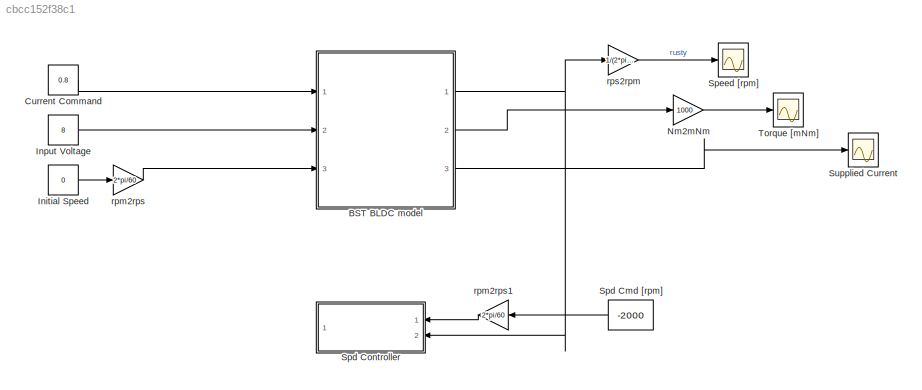
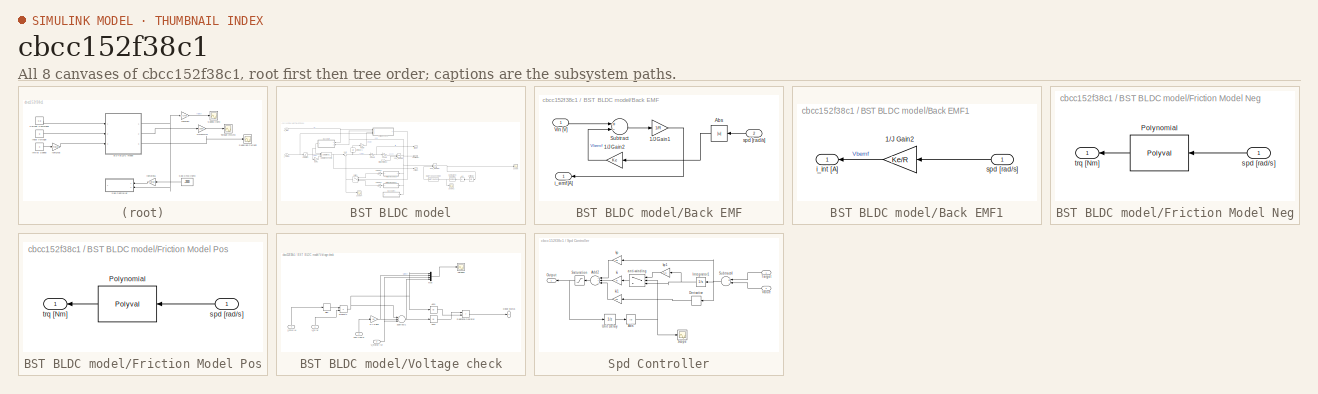
[diagram: thumbnail index - all 8 canvases of the model, root first then tree order]
MODEL slx_cbcc152f38c1
KIND model
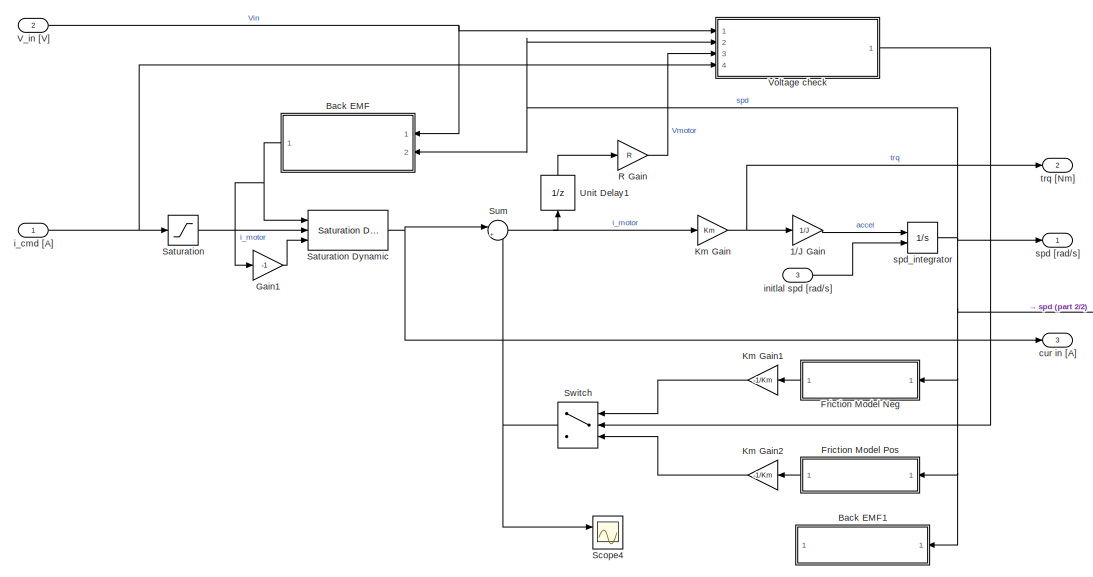
[diagram: BST BLDC model - part 1/2, left side, full height]
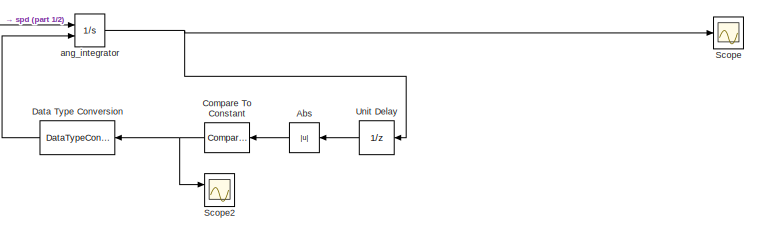
[diagram: BST BLDC model - part 2/2, bottom right region]
BLOCK [SubSystem] BST BLDC model
  Ports = [3, 3]
  RequestExecContextInheritance = off
BLOCK [Gain] BST BLDC model/1//J Gain
  Gain = 1/J
  OutDataTypeStr = Inherit: Inherit via internal rule
  ParamDataTypeStr = Inherit: Inherit via internal rule
  SaturateOnIntegerOverflow = off
BLOCK [Abs] BST BLDC model/Abs
  SaturateOnIntegerOverflow = off
BLOCK [SubSystem] BST BLDC model/Back EMF
  Ports = [2, 1]
  RequestExecContextInheritance = off
BLOCK [Gain] BST BLDC model/Back EMF/1//J Gain1
  Gain = 1/R
  OutDataTypeStr = Inherit: Inherit via internal rule
  ParamDataTypeStr = Inherit: Inherit via internal rule
  SaturateOnIntegerOverflow = off
BLOCK [Gain] BST BLDC model/Back EMF/1//J Gain2
  Gain = Ke
  OutDataTypeStr = Inherit: Inherit via internal rule
  ParamDataTypeStr = Inherit: Inherit via internal rule
  SaturateOnIntegerOverflow = off
BLOCK [Abs] BST BLDC model/Back EMF/Abs
  SaturateOnIntegerOverflow = off
BLOCK [Sum] BST BLDC model/Back EMF/Subtract
  InputSameDT = off
  Inputs = +-
  OutDataTypeStr = Inherit: Inherit via internal rule
  Ports = [2, 1]
  SaturateOnIntegerOverflow = off
BLOCK [Inport] BST BLDC model/Back EMF/Vin [V]
  IconDisplay = Port number
BLOCK [Outport] BST BLDC model/Back EMF/i_emf [A]
  IconDisplay = Port number
BLOCK [Inport] BST BLDC model/Back EMF/spd [rad//s]
  IconDisplay = Port number
  Port = 2
BLOCK [SubSystem] BST BLDC model/Back EMF1
  Ports = [1, 1]
  RequestExecContextInheritance = off
BLOCK [Gain] BST BLDC model/Back EMF1/1//J Gain2
  Gain = Ke/R
  OutDataTypeStr = Inherit: Inherit via internal rule
  ParamDataTypeStr = Inherit: Inherit via internal rule
  SaturateOnIntegerOverflow = off
BLOCK [Outport] BST BLDC model/Back EMF1/i_int [A]
  IconDisplay = Port number
BLOCK [Inport] BST BLDC model/Back EMF1/spd [rad//s]
  IconDisplay = Port number
BLOCK [Reference] BST BLDC model/Compare To Constant  REF=simulink/Logic and Bit
Operations/Compare
To Constant
  OutDataTypeStr = uint8
  Ports = [1, 1]
  SourceBlock = simulink/Logic and Bit\nOperations/Compare\nTo Constant
  SourceType = Compare To Constant
  ZeroCross = on
  const = 2*pi
  relop = >
BLOCK [DataTypeConversion] BST BLDC model/Data Type Conversion
  RndMeth = Floor
  SaturateOnIntegerOverflow = off
BLOCK [SubSystem] BST BLDC model/Friction Model Neg
  Ports = [1, 1]
  RequestExecContextInheritance = off
BLOCK [Polyval] BST BLDC model/Friction Model Neg/Polynomial
  Coefs = frctn
BLOCK [Inport] BST BLDC model/Friction Model Neg/spd [rad//s]
  IconDisplay = Port number
BLOCK [Outport] BST BLDC model/Friction Model Neg/trq [Nm]
  IconDisplay = Port number
BLOCK [SubSystem] BST BLDC model/Friction Model Pos
  Ports = [1, 1]
  RequestExecContextInheritance = off
BLOCK [Polyval] BST BLDC model/Friction Model Pos/Polynomial
  Coefs = frctn
BLOCK [Inport] BST BLDC model/Friction Model Pos/spd [rad//s]
  IconDisplay = Port number
BLOCK [Outport] BST BLDC model/Friction Model Pos/trq [Nm]
  IconDisplay = Port number
BLOCK [Gain] BST BLDC model/Gain1
  Gain = -1
  OutDataTypeStr = Inherit: Inherit via internal rule
  ParamDataTypeStr = Inherit: Inherit via internal rule
  SaturateOnIntegerOverflow = off
BLOCK [Gain] BST BLDC model/Km Gain
  Gain = Km
  OutDataTypeStr = Inherit: Inherit via internal rule
  ParamDataTypeStr = Inherit: Inherit via internal rule
  SaturateOnIntegerOverflow = off
BLOCK [Gain] BST BLDC model/Km Gain1
  Gain = -1/Km
  OutDataTypeStr = Inherit: Inherit via internal rule
  ParamDataTypeStr = Inherit: Inherit via internal rule
  SaturateOnIntegerOverflow = off
BLOCK [Gain] BST BLDC model/Km Gain2
  Gain = -1/Km
  OutDataTypeStr = Inherit: Inherit via internal rule
  ParamDataTypeStr = Inherit: Inherit via internal rule
  SaturateOnIntegerOverflow = off
BLOCK [Gain] BST BLDC model/R Gain
  Gain = R
  OutDataTypeStr = Inherit: Inherit via internal rule
  ParamDataTypeStr = Inherit: Inherit via internal rule
  SaturateOnIntegerOverflow = off
BLOCK [Saturate] BST BLDC model/Saturation
  InputPortMap = u0
  LowerLimit = -i_max
  Ports = [1, 1]
  UpperLimit = i_max
BLOCK [Reference] BST BLDC model/Saturation Dynamic  REF=simulink/Discontinuities/Saturation
Dynamic
  DoSatur = off
  LockScale = off
  OutDataType = fixdt(1, 16)
  OutDataTypeStr = Inherit: Same as second input
  OutMax = []
  OutMin = []
  OutScaling = 2^-10
  OutputDataTypeScalingMode = Same as second input
  Ports = [3, 1]
  RndMeth = Floor
  SourceBlock = simulink/Discontinuities/Saturation\nDynamic
  SourceType = Saturation Dynamic
BLOCK [Scope] BST BLDC model/Scope
  Floating = off
  NumInputPorts = 1
  Ports = [1]
  SaveName = ScopeData3
  ShowLegends = off
  TimeRange = 30
BLOCK [Scope] BST BLDC model/Scope2
  Floating = off
  NumInputPorts = 2
  Ports = [2]
  SaveName = ScopeData7
  ShowLegends = off
  TimeRange = 30
  YMax = 5~5
  YMin = -5~-5
BLOCK [Scope] BST BLDC model/Scope4
  Floating = off
  NumInputPorts = 2
  Ports = [2]
  SaveName = ScopeData10
  ShowLegends = off
  TimeRange = 10
  YMax = 12~1.4
  YMin = 0~0
BLOCK [Sum] BST BLDC model/Sum
  IconShape = round
  InputSameDT = off
  Inputs = |+-
  OutDataTypeStr = Inherit: Inherit via internal rule
  Ports = [2, 1]
  SaturateOnIntegerOverflow = off
BLOCK [Switch] BST BLDC model/Switch
  Criteria = u2 > Threshold
  InputSameDT = off
  SaturateOnIntegerOverflow = off
BLOCK [UnitDelay] BST BLDC model/Unit Delay
  InputProcessing = Elements as channels (sample based)
  SampleTime = -1
BLOCK [UnitDelay] BST BLDC model/Unit Delay1
  InputProcessing = Elements as channels (sample based)
  SampleTime = -1
BLOCK [Inport] BST BLDC model/V_in [V]
  IconDisplay = Port number
  Port = 2
BLOCK [SubSystem] BST BLDC model/Voltage check
  Ports = [4, 1]
  RequestExecContextInheritance = off
BLOCK [Gain] BST BLDC model/Voltage check/1//J Gain3
  Gain = Ke
  OutDataTypeStr = Inherit: Inherit via internal rule
  ParamDataTypeStr = Inherit: Inherit via internal rule
  SaturateOnIntegerOverflow = off
BLOCK [Abs] BST BLDC model/Voltage check/Abs1
  SaturateOnIntegerOverflow = off
BLOCK [Abs] BST BLDC model/Voltage check/Abs2
  SaturateOnIntegerOverflow = off
BLOCK [Outport] BST BLDC model/Voltage check/Diode Status
  IconDisplay = Port number
BLOCK [Mux] BST BLDC model/Voltage check/Mux
  DisplayOption = bar
  Ports = [4, 1]
BLOCK [Product] BST BLDC model/Voltage check/Product1
  InputSameDT = off
  OutDataTypeStr = Inherit: Inherit via internal rule
  Ports = [2, 1]
  RndMeth = Floor
  SaturateOnIntegerOverflow = off
BLOCK [RelationalOperator] BST BLDC model/Voltage check/Relational Operator
  InputSameDT = off
  Operator = >
  OutDataTypeStr = boolean
  Ports = [2, 1]
BLOCK [Signum] BST BLDC model/Voltage check/Sign
BLOCK [Sum] BST BLDC model/Voltage check/Subtract1
  InputSameDT = off
  Inputs = +--
  OutDataTypeStr = Inherit: Inherit via internal rule
  Ports = [3, 1]
  SaturateOnIntegerOverflow = off
BLOCK [Inport] BST BLDC model/Voltage check/V_in [V]
  IconDisplay = Port number
BLOCK [Inport] BST BLDC model/Voltage check/V_motor [V]
  IconDisplay = Port number
  Port = 3
BLOCK [Scope] BST BLDC model/Voltage check/Voltages
  Floating = off
  LegendLocations = 0.86851     0.86633    0.088511    0.075911
  LimitDataPoints = off
  NumInputPorts = 1
  Ports = [1]
  SaveName = ScopeData4
  ShowLegends = on
  TimeRange = 30
  YMax = 0
  YMin = -25
BLOCK [Inport] BST BLDC model/Voltage check/i_cmd [A]
  IconDisplay = Port number
  Port = 4
BLOCK [Inport] BST BLDC model/Voltage check/spd [rad//s]
  IconDisplay = Port number
  Port = 2
BLOCK [Integrator] BST BLDC model/ang_integrator
  ExternalReset = rising
  Ports = [2, 1]
BLOCK [Outport] BST BLDC model/cur in [A]
  IconDisplay = Port number
  Port = 3
BLOCK [Inport] BST BLDC model/i_cmd [A]
  IconDisplay = Port number
BLOCK [Inport] BST BLDC model/initlal spd [rad//s]
  IconDisplay = Port number
  Port = 3
BLOCK [Outport] BST BLDC model/spd [rad//s]
  IconDisplay = Port number
BLOCK [Integrator] BST BLDC model/spd_integrator
  InitialCondition = spd_0
  InitialConditionSource = external
  Ports = [2, 1]
BLOCK [Outport] BST BLDC model/trq [Nm]
  IconDisplay = Port number
  Port = 2
BLOCK [Constant] Current Command 
  Value = 0.8
BLOCK [Constant] Initial Speed
  Value = 0
BLOCK [Constant] Input Voltage
  Value = 8
BLOCK [Gain] Nm2mNm
  Gain = 1000
  OutDataTypeStr = Inherit: Inherit via internal rule
  ParamDataTypeStr = Inherit: Inherit via internal rule
  SaturateOnIntegerOverflow = off
BLOCK [Constant] Spd Cmd [rpm]
  Value = -2000
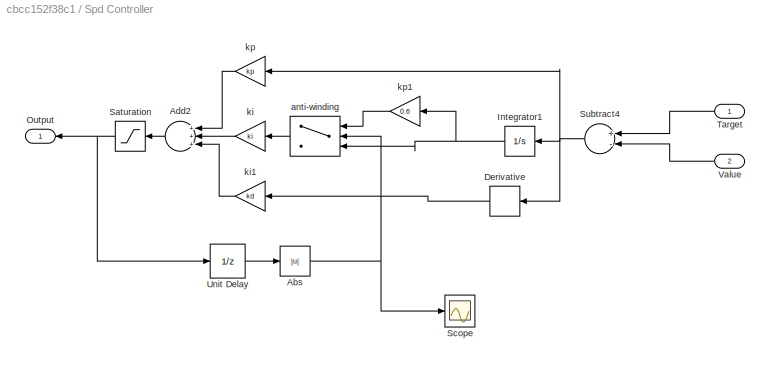
BLOCK [SubSystem] Spd Controller
  Ports = [2, 1]
  RequestExecContextInheritance = off
BLOCK [Abs] Spd Controller/Abs
  SaturateOnIntegerOverflow = off
BLOCK [Sum] Spd Controller/Add2
  InputSameDT = off
  Inputs = +++
  OutDataTypeStr = Inherit: Inherit via internal rule
  Ports = [3, 1]
  SaturateOnIntegerOverflow = off
BLOCK [Derivative] Spd Controller/Derivative
BLOCK [Integrator] Spd Controller/Integrator1
  Ports = [1, 1]
BLOCK [Outport] Spd Controller/Output
  IconDisplay = Port number
BLOCK [Saturate] Spd Controller/Saturation
  InputPortMap = u0
  LowerLimit = -2
  Ports = [1, 1]
  UpperLimit = 2
BLOCK [Scope] Spd Controller/Scope
  Floating = off
  LimitDataPoints = off
  NumInputPorts = 1
  Ports = [1]
  SaveName = ScopeData6
  ShowLegends = off
BLOCK [Sum] Spd Controller/Subtract4
  InputSameDT = off
  Inputs = +-
  OutDataTypeStr = Inherit: Inherit via internal rule
  Ports = [2, 1]
  SaturateOnIntegerOverflow = off
BLOCK [Inport] Spd Controller/Target
  IconDisplay = Port number
BLOCK [UnitDelay] Spd Controller/Unit Delay
  InputProcessing = Elements as channels (sample based)
  SampleTime = -1
BLOCK [Inport] Spd Controller/Value
  IconDisplay = Port number
  Port = 2
BLOCK [Switch] Spd Controller/anti-winding
  Criteria = u2 > Threshold
  InputSameDT = off
  SaturateOnIntegerOverflow = off
  Threshold = output_max
BLOCK [Gain] Spd Controller/ki
  Gain = ki
  OutDataTypeStr = Inherit: Inherit via internal rule
  ParamDataTypeStr = Inherit: Inherit via internal rule
  SaturateOnIntegerOverflow = off
BLOCK [Gain] Spd Controller/ki1
  Gain = kd
  OutDataTypeStr = Inherit: Inherit via internal rule
  ParamDataTypeStr = Inherit: Inherit via internal rule
  SaturateOnIntegerOverflow = off
BLOCK [Gain] Spd Controller/kp
  Gain = kp
  OutDataTypeStr = Inherit: Inherit via internal rule
  ParamDataTypeStr = Inherit: Inherit via internal rule
  SaturateOnIntegerOverflow = off
BLOCK [Gain] Spd Controller/kp1
  Gain = 0.6
  OutDataTypeStr = Inherit: Inherit via internal rule
  ParamDataTypeStr = Inherit: Inherit via internal rule
  SaturateOnIntegerOverflow = off
BLOCK [Scope] Speed [rpm] 
  Floating = off
  LegendLocations = 0.8648     0.89256    0.078683    0.030776
  LimitDataPoints = off
  NumInputPorts = 1
  Ports = [1]
  ShowLegends = on
  TimeRange = 5
  YMax = 400
  YMin = 0
BLOCK [Scope] Supplied Current
  Floating = off
  LegendLocations = 0.74791     0.89789     0.20176    0.030823
  LimitDataPoints = off
  NumInputPorts = 1
  Ports = [1]
  SaveName = ScopeData2
  ShowLegends = on
  TimeRange = 10
  YMax = 0.351
  YMin = 0.344
BLOCK [Scope] Torque [mNm]
  Floating = off
  LegendLocations = 0.84828     0.89254     0.13974    0.030823
  LimitDataPoints = off
  NumInputPorts = 1
  Ports = [1]
  SaveName = ScopeData1
  ShowLegends = on
  TimeRange = 300
  YMax = 20
  YMin = -20
BLOCK [Gain] rpm2rps
  Gain = 2*pi/60
  OutDataTypeStr = Inherit: Inherit via internal rule
  ParamDataTypeStr = Inherit: Inherit via internal rule
  SaturateOnIntegerOverflow = off
BLOCK [Gain] rpm2rps1
  Gain = 2*pi/60
  OutDataTypeStr = Inherit: Inherit via internal rule
  ParamDataTypeStr = Inherit: Inherit via internal rule
  SaturateOnIntegerOverflow = off
BLOCK [Gain] rps2rpm
  Gain = 1/(2*pi/60)
  OutDataTypeStr = Inherit: Inherit via internal rule
  ParamDataTypeStr = Inherit: Inherit via internal rule
  SaturateOnIntegerOverflow = off
LINE BST BLDC model/1//J Gain:1 -> BST BLDC model/spd_integrator:1
LINE BST BLDC model/Abs:1 -> BST BLDC model/Compare To Constant:1
LINE BST BLDC model/Back EMF/1//J Gain1:1 -> BST BLDC model/Back EMF/i_emf [A]:1
LINE BST BLDC model/Back EMF/1//J Gain2:1 -> BST BLDC model/Back EMF/Subtract:2
LINE BST BLDC model/Back EMF/Abs:1 -> BST BLDC model/Back EMF/1//J Gain2:1
LINE BST BLDC model/Back EMF/Subtract:1 -> BST BLDC model/Back EMF/1//J Gain1:1
LINE BST BLDC model/Back EMF/Vin [V]:1 -> BST BLDC model/Back EMF/Subtract:1
LINE BST BLDC model/Back EMF/spd [rad//s]:1 -> BST BLDC model/Back EMF/Abs:1
LINE BST BLDC model/Back EMF1/1//J Gain2:1 -> BST BLDC model/Back EMF1/i_int [A]:1
LINE BST BLDC model/Back EMF1/spd [rad//s]:1 -> BST BLDC model/Back EMF1/1//J Gain2:1
NET BST BLDC model/Back EMF:1 -> BST BLDC model/Gain1:1, BST BLDC model/Saturation Dynamic:1
NET BST BLDC model/Compare To Constant:1 -> BST BLDC model/Data Type Conversion:1, BST BLDC model/Scope2:1
LINE BST BLDC model/Data Type Conversion:1 -> BST BLDC model/ang_integrator:2
LINE BST BLDC model/Friction Model Neg/Polynomial:1 -> BST BLDC model/Friction Model Neg/trq [Nm]:1
LINE BST BLDC model/Friction Model Neg/spd [rad//s]:1 -> BST BLDC model/Friction Model Neg/Polynomial:1
LINE BST BLDC model/Friction Model Neg:1 -> BST BLDC model/Km Gain1:1
LINE BST BLDC model/Friction Model Pos/Polynomial:1 -> BST BLDC model/Friction Model Pos/trq [Nm]:1
LINE BST BLDC model/Friction Model Pos/spd [rad//s]:1 -> BST BLDC model/Friction Model Pos/Polynomial:1
LINE BST BLDC model/Friction Model Pos:1 -> BST BLDC model/Km Gain2:1
LINE BST BLDC model/Gain1:1 -> BST BLDC model/Saturation Dynamic:3
LINE BST BLDC model/Km Gain1:1 -> BST BLDC model/Switch:1
LINE BST BLDC model/Km Gain2:1 -> BST BLDC model/Switch:3
NET BST BLDC model/Km Gain:1 -> BST BLDC model/1//J Gain:1, BST BLDC model/trq [Nm]:1
LINE BST BLDC model/R Gain:1 -> BST BLDC model/Voltage check:3
NET BST BLDC model/Saturation Dynamic:1 -> BST BLDC model/Sum:1, BST BLDC model/cur in [A]:1
LINE BST BLDC model/Saturation:1 -> BST BLDC model/Saturation Dynamic:2
NET BST BLDC model/Sum:1 -> BST BLDC model/Km Gain:1, BST BLDC model/Unit Delay1:1
NET BST BLDC model/Switch:1 -> BST BLDC model/Scope4:1, BST BLDC model/Sum:2
LINE BST BLDC model/Unit Delay1:1 -> BST BLDC model/R Gain:1
LINE BST BLDC model/Unit Delay:1 -> BST BLDC model/Abs:1
NET BST BLDC model/V_in [V]:1 -> BST BLDC model/Back EMF:1, BST BLDC model/Voltage check:1
NET BST BLDC model/Voltage check/1//J Gain3:1 -> BST BLDC model/Voltage check/Mux:2, BST BLDC model/Voltage check/Subtract1:2
LINE BST BLDC model/Voltage check/Abs1:1 -> BST BLDC model/Voltage check/Relational Operator:2
LINE BST BLDC model/Voltage check/Abs2:1 -> BST BLDC model/Voltage check/Relational Operator:1
LINE BST BLDC model/Voltage check/Mux:1 -> BST BLDC model/Voltage check/Voltages:1
NET BST BLDC model/Voltage check/Product1:1 -> BST BLDC model/Voltage check/Abs1:1, BST BLDC model/Voltage check/Mux:1, BST BLDC model/Voltage check/Subtract1:1
LINE BST BLDC model/Voltage check/Relational Operator:1 -> BST BLDC model/Voltage check/Diode Status:1
LINE BST BLDC model/Voltage check/Sign:1 -> BST BLDC model/Voltage check/Product1:1
NET BST BLDC model/Voltage check/Subtract1:1 -> BST BLDC model/Voltage check/Abs2:1, BST BLDC model/Voltage check/Mux:4
LINE BST BLDC model/Voltage check/V_in [V]:1 -> BST BLDC model/Voltage check/Product1:2
NET BST BLDC model/Voltage check/V_motor [V]:1 -> BST BLDC model/Voltage check/Mux:3, BST BLDC model/Voltage check/Subtract1:3
LINE BST BLDC model/Voltage check/i_cmd [A]:1 -> BST BLDC model/Voltage check/Sign:1
LINE BST BLDC model/Voltage check/spd [rad//s]:1 -> BST BLDC model/Voltage check/1//J Gain3:1
LINE BST BLDC model/Voltage check:1 -> BST BLDC model/Switch:2
NET BST BLDC model/ang_integrator:1 -> BST BLDC model/Scope:1, BST BLDC model/Unit Delay:1
NET BST BLDC model/i_cmd [A]:1 -> BST BLDC model/Saturation:1, BST BLDC model/Voltage check:4
LINE BST BLDC model/initlal spd [rad//s]:1 -> BST BLDC model/spd_integrator:2
NET BST BLDC model/spd_integrator:1 -> BST BLDC model/Back EMF1:1, BST BLDC model/Back EMF:2, BST BLDC model/Friction Model Neg:1, BST BLDC model/Friction Model Pos:1, BST BLDC model/Voltage check:2, BST BLDC model/ang_integrator:1, BST BLDC model/spd [rad//s]:1
NET BST BLDC model:1 -> Spd Controller:2, rps2rpm:1
LINE BST BLDC model:2 -> Nm2mNm:1
LINE BST BLDC model:3 -> Supplied Current:1
LINE Current Command :1 -> BST BLDC model:1
LINE Initial Speed:1 -> rpm2rps:1
LINE Input Voltage:1 -> BST BLDC model:2
LINE Nm2mNm:1 -> Torque [mNm]:1
LINE Spd Cmd [rpm]:1 -> rpm2rps1:1
NET Spd Controller/Abs:1 -> Spd Controller/Scope:1, Spd Controller/anti-winding:2
LINE Spd Controller/Add2:1 -> Spd Controller/Saturation:1
LINE Spd Controller/Derivative:1 -> Spd Controller/ki1:1
NET Spd Controller/Integrator1:1 -> Spd Controller/anti-winding:3, Spd Controller/kp1:1
NET Spd Controller/Saturation:1 -> Spd Controller/Output:1, Spd Controller/Unit Delay:1
NET Spd Controller/Subtract4:1 -> Spd Controller/Derivative:1, Spd Controller/Integrator1:1, Spd Controller/kp:1
LINE Spd Controller/Target:1 -> Spd Controller/Subtract4:1
LINE Spd Controller/Unit Delay:1 -> Spd Controller/Abs:1
LINE Spd Controller/Value:1 -> Spd Controller/Subtract4:2
LINE Spd Controller/anti-winding:1 -> Spd Controller/ki:1
LINE Spd Controller/ki1:1 -> Spd Controller/Add2:3
LINE Spd Controller/ki:1 -> Spd Controller/Add2:2
LINE Spd Controller/kp1:1 -> Spd Controller/anti-winding:1
LINE Spd Controller/kp:1 -> Spd Controller/Add2:1
LINE rpm2rps1:1 -> Spd Controller:1
LINE rpm2rps:1 -> BST BLDC model:3
LINE rps2rpm:1 -> Speed [rpm] :1
note: NET lines group one-source signal fan-out (src -> all destinations, sorted); 1:1 wires keep LINE
